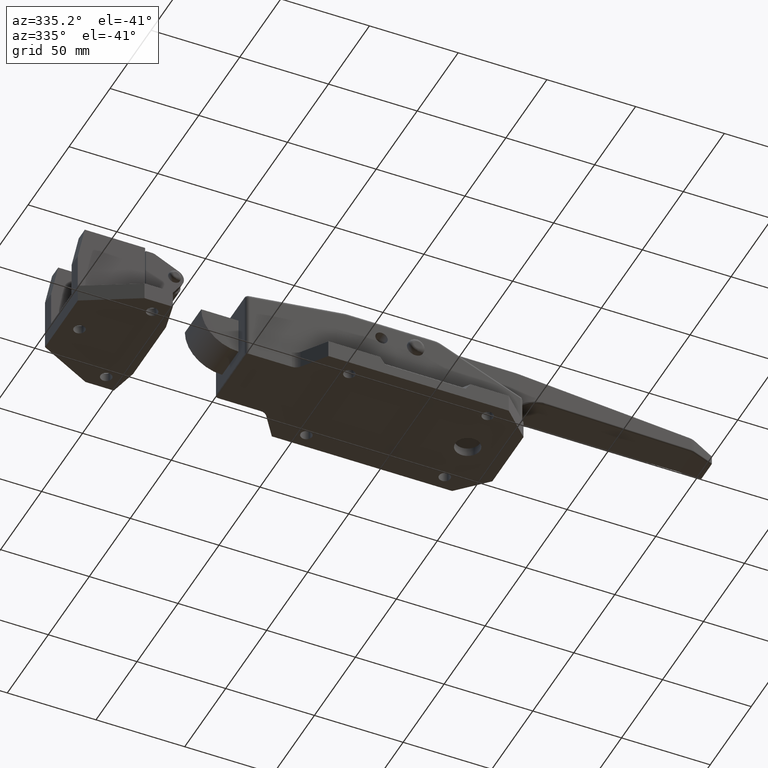
[diagram: clean part render]
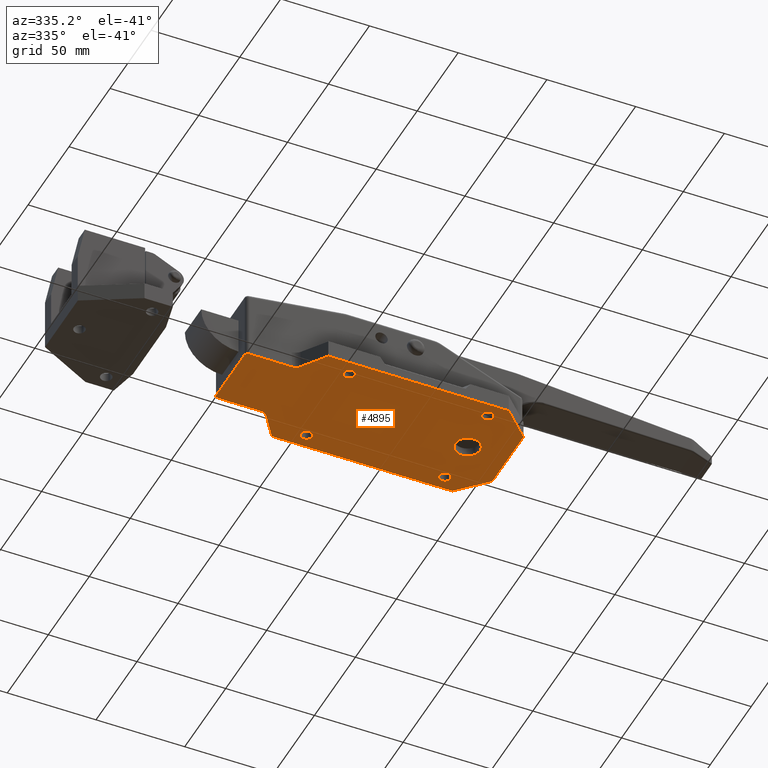
[diagram: same view with one face highlighted and labeled with its STEP entity id]
A machine part, auxiliary view. The second image highlights one B-rep face of the part: STEP entity #4895.
In plain terms, the highlighted planar face has unit normal (0, 0, 1).
Its self-contained STEP definition (entity closure, byte-faithful):
#61 = DIRECTION ( 'NONE',  ( -0.0000000000000000000, -0.0000000000000000000, 1.000000000000000000 ) ) ;
#75 = LINE ( 'NONE', #5573, #8567 ) ;
#84 = EDGE_LOOP ( 'NONE', ( #3143, #1651 ) ) ;
#177 = EDGE_CURVE ( 'NONE', #1675, #3471, #6342, .T. ) ;
#187 = CARTESIAN_POINT ( 'NONE',  ( -20.04999999999999000, 26.25000000000000000, 0.0000000000000000000 ) ) ;
#201 = CARTESIAN_POINT ( 'NONE',  ( -78.25000000000004300, 17.00000000000000000, 0.0000000000000000000 ) ) ;
#223 = CARTESIAN_POINT ( 'NONE',  ( 55.55000000000001800, 0.0000000000000000000, 0.0000000000000000000 ) ) ;
#246 = VERTEX_POINT ( 'NONE', #2676 ) ;
#255 = DIRECTION ( 'NONE',  ( 0.0000000000000000000, 0.0000000000000000000, -1.000000000000000000 ) ) ;
#273 = CARTESIAN_POINT ( 'NONE',  ( 54.75000000000002100, 26.25000000000000000, 0.0000000000000000000 ) ) ;
#299 = AXIS2_PLACEMENT_3D ( 'NONE', #5721, #7373, #2174 ) ;
#385 = VERTEX_POINT ( 'NONE', #7103 ) ;
#387 = LINE ( 'NONE', #3641, #6723 ) ;
#406 = VECTOR ( 'NONE', #3440, 1000.000000000000000 ) ;
#428 = VERTEX_POINT ( 'NONE', #972 ) ;
#488 = VECTOR ( 'NONE', #2879, 1000.000000000000000 ) ;
#493 = CIRCLE ( 'NONE', #2947, 2.000000000000001800 ) ;
#525 = ORIENTED_EDGE ( 'NONE', *, *, #8690, .T. ) ;
#570 = VECTOR ( 'NONE', #7257, 1000.000000000000000 ) ;
#593 = EDGE_CURVE ( 'NONE', #8597, #1274, #3948, .T. ) ;
#595 = CARTESIAN_POINT ( 'NONE',  ( -78.25000000000004300, -19.00000000000000000, 0.0000000000000000000 ) ) ;
#677 = CIRCLE ( 'NONE', #1869, 3.200000000000001500 ) ;
#687 = FACE_BOUND ( 'NONE', #5849, .T. ) ;
#753 = EDGE_LOOP ( 'NONE', ( #5093, #2819 ) ) ;
#781 = EDGE_CURVE ( 'NONE', #3702, #8568, #4618, .T. ) ;
#791 = LINE ( 'NONE', #595, #570 ) ;
#854 = DIRECTION ( 'NONE',  ( -0.5735764363510470500, 0.8191520442889911300, 0.0000000000000000000 ) ) ;
#868 = AXIS2_PLACEMENT_3D ( 'NONE', #3099, #3109, #3427 ) ;
#905 = AXIS2_PLACEMENT_3D ( 'NONE', #5284, #2084, #5312 ) ;
#912 = EDGE_CURVE ( 'NONE', #7507, #5673, #2603, .T. ) ;
#972 = CARTESIAN_POINT ( 'NONE',  ( -20.04999999999999000, -26.25000000000000000, 0.0000000000000000000 ) ) ;
#1036 = VERTEX_POINT ( 'NONE', #6400 ) ;
#1043 = EDGE_CURVE ( 'NONE', #5673, #7507, #1247, .T. ) ;
#1131 = DIRECTION ( 'NONE',  ( -0.0000000000000000000, -0.0000000000000000000, 1.000000000000000000 ) ) ;
#1157 = ORIENTED_EDGE ( 'NONE', *, *, #7622, .T. ) ;
#1247 = CIRCLE ( 'NONE', #2709, 3.200000000000001500 ) ;
#1269 = EDGE_CURVE ( 'NONE', #5326, #8597, #7812, .T. ) ;
#1274 = VERTEX_POINT ( 'NONE', #2154 ) ;
#1484 = ORIENTED_EDGE ( 'NONE', *, *, #3510, .T. ) ;
#1518 = CARTESIAN_POINT ( 'NONE',  ( -78.25000000000004300, 19.00000000000000000, 0.0000000000000000000 ) ) ;
#1651 = ORIENTED_EDGE ( 'NONE', *, *, #2565, .T. ) ;
#1675 = VERTEX_POINT ( 'NONE', #4180 ) ;
#1869 = AXIS2_PLACEMENT_3D ( 'NONE', #7764, #61, #7777 ) ;
#1909 = CIRCLE ( 'NONE', #6046, 6.999999999999999100 ) ;
#1911 = AXIS2_PLACEMENT_3D ( 'NONE', #6648, #7381, #7369 ) ;
#1934 = VECTOR ( 'NONE', #2779, 1000.000000000000000 ) ;
#2084 = DIRECTION ( 'NONE',  ( -0.0000000000000000000, -0.0000000000000000000, -1.000000000000000000 ) ) ;
#2154 = CARTESIAN_POINT ( 'NONE',  ( -38.89678315774946800, 34.50000000000000000, 0.0000000000000000000 ) ) ;
#2155 = EDGE_CURVE ( 'NONE', #4045, #3734, #75, .T. ) ;
#2174 = DIRECTION ( 'NONE',  ( 1.000000000000000000, 0.0000000000000000000, 0.0000000000000000000 ) ) ;
#2175 = DIRECTION ( 'NONE',  ( 1.000000000000000000, 0.0000000000000000000, 0.0000000000000000000 ) ) ;
#2182 = DIRECTION ( 'NONE',  ( -0.0000000000000000000, -0.0000000000000000000, 1.000000000000000000 ) ) ;
#2197 = CARTESIAN_POINT ( 'NONE',  ( -23.24999999999999300, -26.25000000000000000, 0.0000000000000000000 ) ) ;
#2359 = EDGE_CURVE ( 'NONE', #385, #4892, #6630, .T. ) ;
#2361 = CARTESIAN_POINT ( 'NONE',  ( 48.55000000000001800, 0.0000000000000000000, 0.0000000000000000000 ) ) ;
#2367 = VERTEX_POINT ( 'NONE', #8682 ) ;
#2408 = FACE_BOUND ( 'NONE', #5143, .T. ) ;
#2429 = DIRECTION ( 'NONE',  ( -0.0000000000000000000, -0.0000000000000000000, -1.000000000000000000 ) ) ;
#2432 = AXIS2_PLACEMENT_3D ( 'NONE', #6267, #2574, #2559 ) ;
#2436 = EDGE_CURVE ( 'NONE', #1274, #1036, #4246, .T. ) ;
#2437 = DIRECTION ( 'NONE',  ( 1.000000000000000000, 0.0000000000000000000, 0.0000000000000000000 ) ) ;
#2477 = ORIENTED_EDGE ( 'NONE', *, *, #3353, .T. ) ;
#2534 = CARTESIAN_POINT ( 'NONE',  ( 55.55000000000001800, 0.0000000000000000000, 0.0000000000000000000 ) ) ;
#2543 = AXIS2_PLACEMENT_3D ( 'NONE', #5740, #7404, #7423 ) ;
#2559 = DIRECTION ( 'NONE',  ( 1.000000000000000000, 0.0000000000000000000, 0.0000000000000000000 ) ) ;
#2565 = EDGE_CURVE ( 'NONE', #5119, #428, #8558, .T. ) ;
#2574 = DIRECTION ( 'NONE',  ( -0.0000000000000000000, -0.0000000000000000000, 1.000000000000000000 ) ) ;
#2582 = LINE ( 'NONE', #4024, #406 ) ;
#2603 = CIRCLE ( 'NONE', #2432, 3.200000000000001500 ) ;
#2655 = VECTOR ( 'NONE', #4560, 1000.000000000000000 ) ;
#2676 = CARTESIAN_POINT ( 'NONE',  ( 78.25000000000001400, -19.00000000000000000, 0.0000000000000000000 ) ) ;
#2709 = AXIS2_PLACEMENT_3D ( 'NONE', #6433, #6428, #6491 ) ;
#2779 = DIRECTION ( 'NONE',  ( -1.000000000000000000, 0.0000000000000000000, 0.0000000000000000000 ) ) ;
#2819 = ORIENTED_EDGE ( 'NONE', *, *, #2359, .T. ) ;
#2879 = DIRECTION ( 'NONE',  ( -0.0000000000000000000, -1.000000000000000000, -0.0000000000000000000 ) ) ;
#2915 = DIRECTION ( 'NONE',  ( -1.000000000000000000, 0.0000000000000000000, 0.0000000000000000000 ) ) ;
#2947 = AXIS2_PLACEMENT_3D ( 'NONE', #5909, #2429, #2437 ) ;
#3099 = CARTESIAN_POINT ( 'NONE',  ( -23.24999999999999300, 26.25000000000000000, 0.0000000000000000000 ) ) ;
#3109 = DIRECTION ( 'NONE',  ( -0.0000000000000000000, -0.0000000000000000000, 1.000000000000000000 ) ) ;
#3143 = ORIENTED_EDGE ( 'NONE', *, *, #3908, .T. ) ;
#3179 = ORIENTED_EDGE ( 'NONE', *, *, #2436, .T. ) ;
#3241 = CARTESIAN_POINT ( 'NONE',  ( -76.25000000000004300, 19.00000000000000000, 0.0000000000000000000 ) ) ;
#3284 = CARTESIAN_POINT ( 'NONE',  ( -23.24999999999999300, 26.25000000000000000, 0.0000000000000000000 ) ) ;
#3285 = DIRECTION ( 'NONE',  ( -0.0000000000000000000, -0.0000000000000000000, 1.000000000000000000 ) ) ;
#3353 = EDGE_CURVE ( 'NONE', #5753, #6538, #4850, .T. ) ;
#3389 = DIRECTION ( 'NONE',  ( 1.000000000000000000, 0.0000000000000000000, 0.0000000000000000000 ) ) ;
#3427 = DIRECTION ( 'NONE',  ( 1.000000000000000000, 0.0000000000000000000, 0.0000000000000000000 ) ) ;
#3440 = DIRECTION ( 'NONE',  ( -0.0000000000000000000, -1.000000000000000000, -0.0000000000000000000 ) ) ;
#3471 = VERTEX_POINT ( 'NONE', #2361 ) ;
#3510 = EDGE_CURVE ( 'NONE', #5767, #8099, #493, .T. ) ;
#3521 = ORIENTED_EDGE ( 'NONE', *, *, #8350, .T. ) ;
#3599 = CARTESIAN_POINT ( 'NONE',  ( -52.35283525275868800, 19.00000000000000000, 0.0000000000000000000 ) ) ;
#3641 = CARTESIAN_POINT ( 'NONE',  ( 78.25000000000001400, 19.00000000000000000, 0.0000000000000000000 ) ) ;
#3681 = LINE ( 'NONE', #6555, #1934 ) ;
#3702 = VERTEX_POINT ( 'NONE', #6558 ) ;
#3714 = EDGE_CURVE ( 'NONE', #6035, #4045, #3681, .T. ) ;
#3734 = VERTEX_POINT ( 'NONE', #6585 ) ;
#3766 = DIRECTION ( 'NONE',  ( 0.7071067811865435800, -0.7071067811865513500, -0.0000000000000000000 ) ) ;
#3864 = VECTOR ( 'NONE', #6717, 1000.000000000000000 ) ;
#3908 = EDGE_CURVE ( 'NONE', #428, #5119, #8211, .T. ) ;
#3948 = LINE ( 'NONE', #8089, #7858 ) ;
#4024 = CARTESIAN_POINT ( 'NONE',  ( 78.25000000000001400, 19.00000000000000000, 0.0000000000000000000 ) ) ;
#4045 = VERTEX_POINT ( 'NONE', #7094 ) ;
#4079 = CARTESIAN_POINT ( 'NONE',  ( 57.95000000000002400, -26.25000000000000000, 0.0000000000000000000 ) ) ;
#4120 = ORIENTED_EDGE ( 'NONE', *, *, #1269, .T. ) ;
#4150 = EDGE_CURVE ( 'NONE', #8568, #3702, #8317, .T. ) ;
#4179 = CARTESIAN_POINT ( 'NONE',  ( -48.25707503131376800, 21.13211781824476500, 0.0000000000000000000 ) ) ;
#4180 = CARTESIAN_POINT ( 'NONE',  ( 62.55000000000002600, 8.572527594031465300E-016, 0.0000000000000000000 ) ) ;
#4206 = FACE_BOUND ( 'NONE', #753, .T. ) ;
#4246 = LINE ( 'NONE', #5228, #2655 ) ;
#4280 = CARTESIAN_POINT ( 'NONE',  ( -26.44999999999999600, -26.25000000000000000, 0.0000000000000000000 ) ) ;
#4285 = AXIS2_PLACEMENT_3D ( 'NONE', #2197, #2182, #2175 ) ;
#4560 = DIRECTION ( 'NONE',  ( 1.000000000000000000, -0.0000000000000000000, -0.0000000000000000000 ) ) ;
#4616 = CARTESIAN_POINT ( 'NONE',  ( 78.25000000000001400, -19.00000000000000000, 0.0000000000000000000 ) ) ;
#4618 = CIRCLE ( 'NONE', #868, 3.200000000000001500 ) ;
#4772 = CARTESIAN_POINT ( 'NONE',  ( 78.25000000000001400, 19.00000000000000000, 0.0000000000000000000 ) ) ;
#4799 = CARTESIAN_POINT ( 'NONE',  ( 57.95000000000002400, 26.25000000000000000, 0.0000000000000000000 ) ) ;
#4849 = EDGE_LOOP ( 'NONE', ( #7899, #1484, #7152, #4120, #7706, #3179, #3521, #525, #7514, #6227, #5529, #1157, #8045, #2477 ) ) ;
#4850 = CIRCLE ( 'NONE', #905, 2.000000000000001800 ) ;
#4892 = VERTEX_POINT ( 'NONE', #4799 ) ;
#4895 = ADVANCED_FACE ( 'NONE', ( #2408, #4206, #687, #7544, #7765, #5765 ), #4938, .F. ) ;
#4902 = DIRECTION ( 'NONE',  ( -1.000000000000000000, 0.0000000000000000000, 0.0000000000000000000 ) ) ;
#4938 = PLANE ( 'NONE',  #1911 ) ;
#5033 = ORIENTED_EDGE ( 'NONE', *, *, #4150, .T. ) ;
#5093 = ORIENTED_EDGE ( 'NONE', *, *, #7031, .T. ) ;
#5119 = VERTEX_POINT ( 'NONE', #4280 ) ;
#5143 = EDGE_LOOP ( 'NONE', ( #6497, #5299 ) ) ;
#5228 = CARTESIAN_POINT ( 'NONE',  ( 62.75000000000019200, 34.50000000000000000, 0.0000000000000000000 ) ) ;
#5284 = CARTESIAN_POINT ( 'NONE',  ( -76.25000000000004300, -17.00000000000000000, 0.0000000000000000000 ) ) ;
#5299 = ORIENTED_EDGE ( 'NONE', *, *, #177, .F. ) ;
#5312 = DIRECTION ( 'NONE',  ( 1.000000000000000000, 0.0000000000000000000, 0.0000000000000000000 ) ) ;
#5319 = ORIENTED_EDGE ( 'NONE', *, *, #781, .T. ) ;
#5326 = VERTEX_POINT ( 'NONE', #3599 ) ;
#5440 = EDGE_CURVE ( 'NONE', #5767, #6538, #5446, .T. ) ;
#5446 = LINE ( 'NONE', #1518, #488 ) ;
#5499 = AXIS2_PLACEMENT_3D ( 'NONE', #3284, #3285, #7389 ) ;
#5529 = ORIENTED_EDGE ( 'NONE', *, *, #2155, .T. ) ;
#5573 = CARTESIAN_POINT ( 'NONE',  ( -38.89678315774946800, -34.50000000000000000, 0.0000000000000000000 ) ) ;
#5673 = VERTEX_POINT ( 'NONE', #4079 ) ;
#5720 = CIRCLE ( 'NONE', #299, 4.999999999999997300 ) ;
#5721 = CARTESIAN_POINT ( 'NONE',  ( -52.35283525275868800, -24.00000000000000000, 0.0000000000000000000 ) ) ;
#5740 = CARTESIAN_POINT ( 'NONE',  ( -52.35283525275868800, 24.00000000000000000, 0.0000000000000000000 ) ) ;
#5753 = VERTEX_POINT ( 'NONE', #6502 ) ;
#5765 = FACE_OUTER_BOUND ( 'NONE', #4849, .T. ) ;
#5767 = VERTEX_POINT ( 'NONE', #201 ) ;
#5799 = EDGE_CURVE ( 'NONE', #246, #6035, #6279, .T. ) ;
#5816 = ORIENTED_EDGE ( 'NONE', *, *, #1043, .T. ) ;
#5849 = EDGE_LOOP ( 'NONE', ( #5033, #5319 ) ) ;
#5909 = CARTESIAN_POINT ( 'NONE',  ( -76.25000000000004300, 17.00000000000000000, 0.0000000000000000000 ) ) ;
#6035 = VERTEX_POINT ( 'NONE', #8304 ) ;
#6046 = AXIS2_PLACEMENT_3D ( 'NONE', #2534, #7977, #2915 ) ;
#6227 = ORIENTED_EDGE ( 'NONE', *, *, #3714, .T. ) ;
#6267 = CARTESIAN_POINT ( 'NONE',  ( 54.75000000000002100, -26.25000000000000000, 0.0000000000000000000 ) ) ;
#6279 = LINE ( 'NONE', #4616, #6480 ) ;
#6342 = CIRCLE ( 'NONE', #6424, 6.999999999999999100 ) ;
#6400 = CARTESIAN_POINT ( 'NONE',  ( 62.75000000000019200, 34.50000000000000000, 0.0000000000000000000 ) ) ;
#6424 = AXIS2_PLACEMENT_3D ( 'NONE', #223, #255, #4902 ) ;
#6428 = DIRECTION ( 'NONE',  ( -0.0000000000000000000, -0.0000000000000000000, 1.000000000000000000 ) ) ;
#6433 = CARTESIAN_POINT ( 'NONE',  ( 54.75000000000002100, -26.25000000000000000, 0.0000000000000000000 ) ) ;
#6480 = VECTOR ( 'NONE', #7630, 1000.000000000000100 ) ;
#6491 = DIRECTION ( 'NONE',  ( 1.000000000000000000, 0.0000000000000000000, 0.0000000000000000000 ) ) ;
#6497 = ORIENTED_EDGE ( 'NONE', *, *, #6933, .F. ) ;
#6502 = CARTESIAN_POINT ( 'NONE',  ( -76.25000000000004300, -19.00000000000000000, 0.0000000000000000000 ) ) ;
#6538 = VERTEX_POINT ( 'NONE', #8474 ) ;
#6555 = CARTESIAN_POINT ( 'NONE',  ( 62.75000000000019200, -34.50000000000000000, 0.0000000000000000000 ) ) ;
#6558 = CARTESIAN_POINT ( 'NONE',  ( -26.44999999999999600, 26.25000000000000000, 0.0000000000000000000 ) ) ;
#6585 = CARTESIAN_POINT ( 'NONE',  ( -48.25707503131376800, -21.13211781824476500, 0.0000000000000000000 ) ) ;
#6630 = CIRCLE ( 'NONE', #7577, 3.200000000000001500 ) ;
#6648 = CARTESIAN_POINT ( 'NONE',  ( -78.25000000000004300, 19.00000000000000000, 0.0000000000000000000 ) ) ;
#6717 = DIRECTION ( 'NONE',  ( -1.000000000000000000, -0.0000000000000000000, -0.0000000000000000000 ) ) ;
#6723 = VECTOR ( 'NONE', #3766, 1000.000000000000100 ) ;
#6724 = CARTESIAN_POINT ( 'NONE',  ( -78.25000000000004300, 19.00000000000000000, 0.0000000000000000000 ) ) ;
#6816 = EDGE_CURVE ( 'NONE', #2367, #5753, #791, .T. ) ;
#6833 = CARTESIAN_POINT ( 'NONE',  ( 51.55000000000001800, -26.25000000000000000, 0.0000000000000000000 ) ) ;
#6914 = CARTESIAN_POINT ( 'NONE',  ( -23.24999999999999300, -26.25000000000000000, 0.0000000000000000000 ) ) ;
#6915 = DIRECTION ( 'NONE',  ( -0.0000000000000000000, -0.0000000000000000000, 1.000000000000000000 ) ) ;
#6924 = DIRECTION ( 'NONE',  ( 1.000000000000000000, 0.0000000000000000000, 0.0000000000000000000 ) ) ;
#6933 = EDGE_CURVE ( 'NONE', #3471, #1675, #1909, .T. ) ;
#6990 = EDGE_CURVE ( 'NONE', #5326, #8099, #7197, .T. ) ;
#7031 = EDGE_CURVE ( 'NONE', #4892, #385, #677, .T. ) ;
#7094 = CARTESIAN_POINT ( 'NONE',  ( -38.89678315774946800, -34.50000000000000000, 0.0000000000000000000 ) ) ;
#7103 = CARTESIAN_POINT ( 'NONE',  ( 51.55000000000001800, 26.25000000000000000, 0.0000000000000000000 ) ) ;
#7152 = ORIENTED_EDGE ( 'NONE', *, *, #6990, .F. ) ;
#7197 = LINE ( 'NONE', #6724, #3864 ) ;
#7257 = DIRECTION ( 'NONE',  ( -1.000000000000000000, -0.0000000000000000000, -0.0000000000000000000 ) ) ;
#7276 = ORIENTED_EDGE ( 'NONE', *, *, #912, .T. ) ;
#7369 = DIRECTION ( 'NONE',  ( 1.000000000000000000, 0.0000000000000000000, -0.0000000000000000000 ) ) ;
#7373 = DIRECTION ( 'NONE',  ( 0.0000000000000000000, 0.0000000000000000000, 1.000000000000000000 ) ) ;
#7381 = DIRECTION ( 'NONE',  ( 0.0000000000000000000, 0.0000000000000000000, 1.000000000000000000 ) ) ;
#7389 = DIRECTION ( 'NONE',  ( 1.000000000000000000, 0.0000000000000000000, 0.0000000000000000000 ) ) ;
#7404 = DIRECTION ( 'NONE',  ( 0.0000000000000000000, 0.0000000000000000000, 1.000000000000000000 ) ) ;
#7423 = DIRECTION ( 'NONE',  ( 1.000000000000000000, 0.0000000000000000000, 0.0000000000000000000 ) ) ;
#7507 = VERTEX_POINT ( 'NONE', #6833 ) ;
#7514 = ORIENTED_EDGE ( 'NONE', *, *, #5799, .T. ) ;
#7544 = FACE_BOUND ( 'NONE', #84, .T. ) ;
#7577 = AXIS2_PLACEMENT_3D ( 'NONE', #273, #1131, #3389 ) ;
#7622 = EDGE_CURVE ( 'NONE', #3734, #2367, #5720, .T. ) ;
#7630 = DIRECTION ( 'NONE',  ( -0.7071067811865435800, -0.7071067811865513500, 0.0000000000000000000 ) ) ;
#7706 = ORIENTED_EDGE ( 'NONE', *, *, #593, .T. ) ;
#7764 = CARTESIAN_POINT ( 'NONE',  ( 54.75000000000002100, 26.25000000000000000, 0.0000000000000000000 ) ) ;
#7765 = FACE_BOUND ( 'NONE', #8411, .T. ) ;
#7769 = DIRECTION ( 'NONE',  ( 0.5735764363510470500, 0.8191520442889911300, -0.0000000000000000000 ) ) ;
#7777 = DIRECTION ( 'NONE',  ( 1.000000000000000000, 0.0000000000000000000, 0.0000000000000000000 ) ) ;
#7812 = CIRCLE ( 'NONE', #2543, 4.999999999999997300 ) ;
#7858 = VECTOR ( 'NONE', #7769, 1000.000000000000100 ) ;
#7899 = ORIENTED_EDGE ( 'NONE', *, *, #5440, .F. ) ;
#7977 = DIRECTION ( 'NONE',  ( 0.0000000000000000000, 0.0000000000000000000, -1.000000000000000000 ) ) ;
#8027 = AXIS2_PLACEMENT_3D ( 'NONE', #6914, #6915, #6924 ) ;
#8045 = ORIENTED_EDGE ( 'NONE', *, *, #6816, .T. ) ;
#8089 = CARTESIAN_POINT ( 'NONE',  ( -38.89678315774946800, 34.50000000000000000, 0.0000000000000000000 ) ) ;
#8099 = VERTEX_POINT ( 'NONE', #3241 ) ;
#8211 = CIRCLE ( 'NONE', #8027, 3.200000000000001500 ) ;
#8304 = CARTESIAN_POINT ( 'NONE',  ( 62.75000000000019200, -34.50000000000000000, 0.0000000000000000000 ) ) ;
#8317 = CIRCLE ( 'NONE', #5499, 3.200000000000001500 ) ;
#8350 = EDGE_CURVE ( 'NONE', #1036, #8524, #387, .T. ) ;
#8411 = EDGE_LOOP ( 'NONE', ( #5816, #7276 ) ) ;
#8474 = CARTESIAN_POINT ( 'NONE',  ( -78.25000000000004300, -17.00000000000000400, 0.0000000000000000000 ) ) ;
#8524 = VERTEX_POINT ( 'NONE', #4772 ) ;
#8558 = CIRCLE ( 'NONE', #4285, 3.200000000000001500 ) ;
#8567 = VECTOR ( 'NONE', #854, 1000.000000000000100 ) ;
#8568 = VERTEX_POINT ( 'NONE', #187 ) ;
#8597 = VERTEX_POINT ( 'NONE', #4179 ) ;
#8682 = CARTESIAN_POINT ( 'NONE',  ( -52.35283525275868800, -19.00000000000000000, 0.0000000000000000000 ) ) ;
#8690 = EDGE_CURVE ( 'NONE', #8524, #246, #2582, .T. ) ;